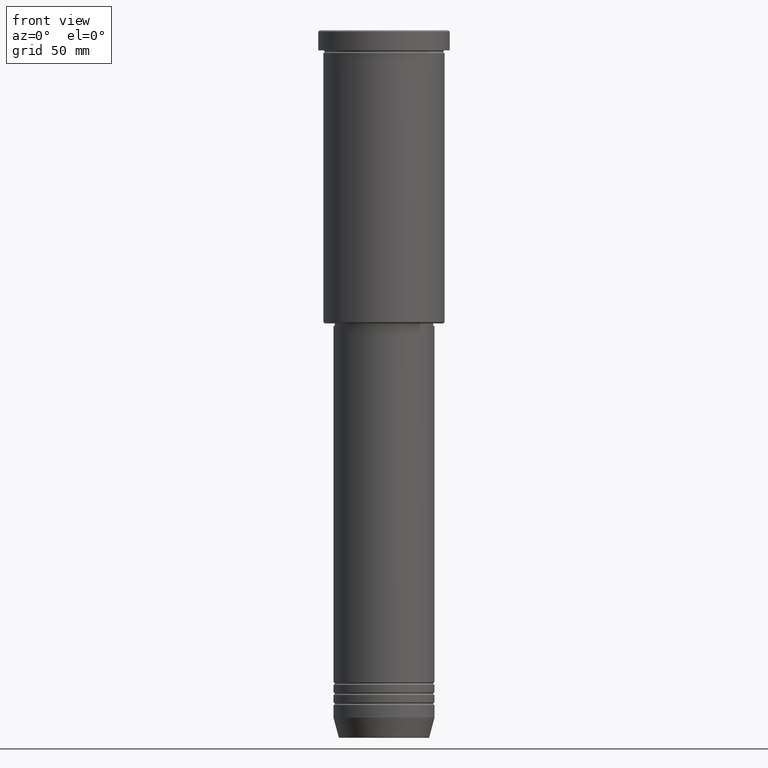
[diagram: clean part render]
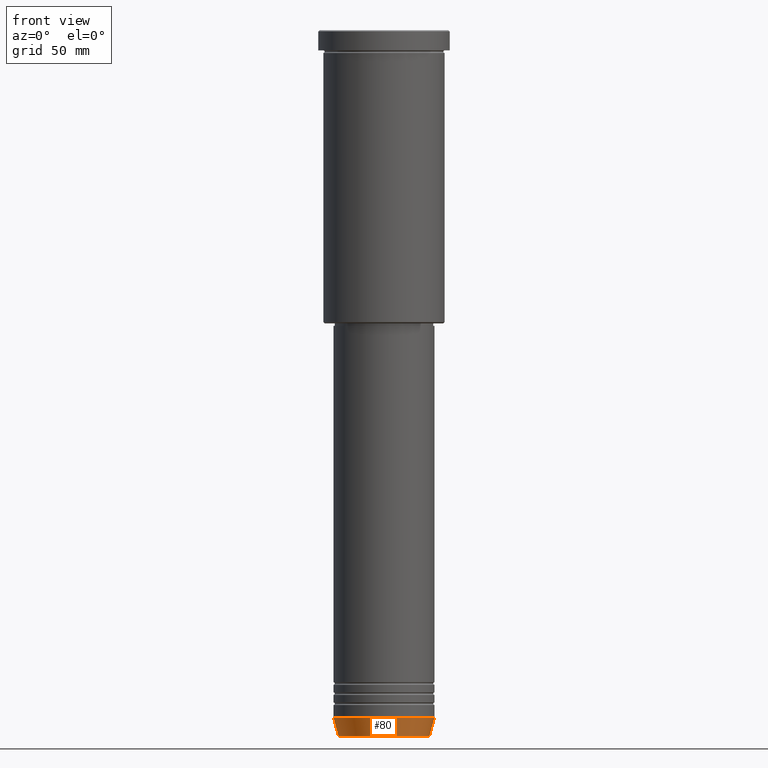
[diagram: same view with one face highlighted and labeled with its STEP entity id]
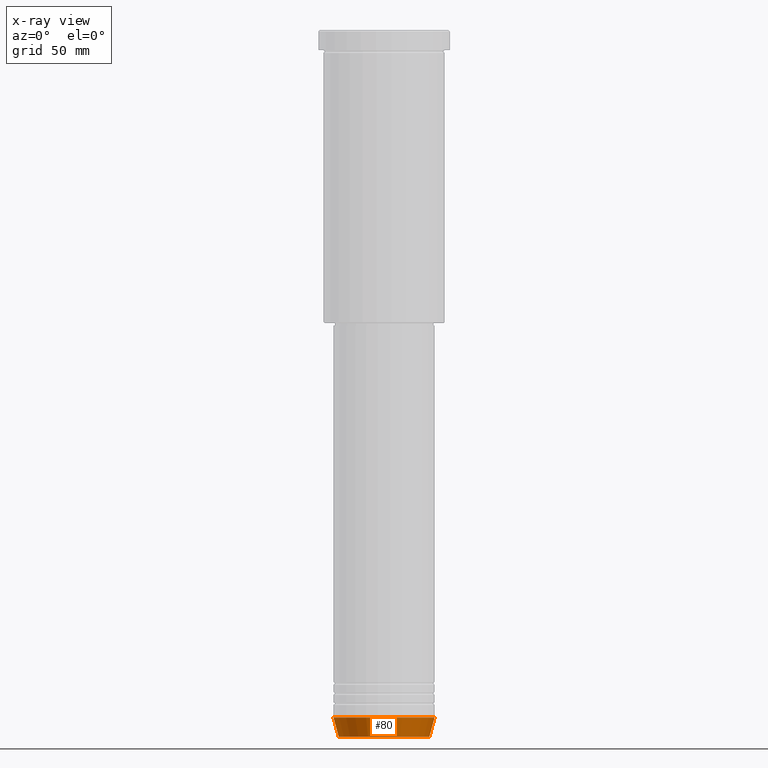
[diagram: x-ray of the same camera — body ghosted, the highlighted face saturated]
A machine part, front view. The second image highlights one B-rep face of the part: STEP entity #80.
The next image is the same camera in x-ray: the body ghosted, the highlighted face saturated — about 0% of this face is hidden behind the body in this view.
In plain terms, the highlighted conical surface has half-angle 15 deg.
Its self-contained STEP definition (entity closure, byte-faithful):
#37 = VECTOR ( 'NONE', #1164, 1000.000000000000114 ) ;
#80 = ADVANCED_FACE ( 'NONE', ( #792 ), #699, .T. ) ;
#84 = CARTESIAN_POINT ( 'NONE',  ( 20.00000000000000355, 0.000000000000000000, -272.0000000000000000 ) ) ;
#165 = CARTESIAN_POINT ( 'NONE',  ( 20.00000000000000355, 0.000000000000000000, -272.0000000000000000 ) ) ;
#210 = VECTOR ( 'NONE', #957, 1000.000000000000114 ) ;
#229 = AXIS2_PLACEMENT_3D ( 'NONE', #785, #599, #322 ) ;
#243 = DIRECTION ( 'NONE',  ( 1.000000000000000000, 0.000000000000000000, 0.000000000000000000 ) ) ;
#322 = DIRECTION ( 'NONE',  ( 1.000000000000000000, 0.000000000000000000, 0.000000000000000000 ) ) ;
#331 = CIRCLE ( 'NONE', #920, 17.95570587970608045 ) ;
#341 = CARTESIAN_POINT ( 'NONE',  ( -20.00000000000000355, 2.449293598294706907E-15, -272.0000000000000000 ) ) ;
#389 = CARTESIAN_POINT ( 'NONE',  ( -20.00000000000000355, 2.449293598294706907E-15, -272.0000000000000000 ) ) ;
#398 = VERTEX_POINT ( 'NONE', #341 ) ;
#407 = ORIENTED_EDGE ( 'NONE', *, *, #607, .T. ) ;
#481 = EDGE_CURVE ( 'NONE', #519, #754, #993, .T. ) ;
#519 = VERTEX_POINT ( 'NONE', #629 ) ;
#544 = DIRECTION ( 'NONE',  ( -0.000000000000000000, -0.000000000000000000, 1.000000000000000000 ) ) ;
#599 = DIRECTION ( 'NONE',  ( -0.000000000000000000, -0.000000000000000000, 1.000000000000000000 ) ) ;
#607 = EDGE_CURVE ( 'NONE', #826, #519, #331, .T. ) ;
#629 = CARTESIAN_POINT ( 'NONE',  ( 17.95570587970608045, 0.000000000000000000, -279.6294095225512706 ) ) ;
#633 = CIRCLE ( 'NONE', #229, 20.00000000000000355 ) ;
#699 = CONICAL_SURFACE ( 'NONE', #1109, 20.00000000000000355, 0.2617993877991499629 ) ;
#737 = CARTESIAN_POINT ( 'NONE',  ( -17.95570587970608045, 2.324116685748021371E-15, -279.6294095225512706 ) ) ;
#754 = VERTEX_POINT ( 'NONE', #84 ) ;
#785 = CARTESIAN_POINT ( 'NONE',  ( 0.000000000000000000, 0.000000000000000000, -272.0000000000000000 ) ) ;
#792 = FACE_OUTER_BOUND ( 'NONE', #871, .T. ) ;
#826 = VERTEX_POINT ( 'NONE', #737 ) ;
#871 = EDGE_LOOP ( 'NONE', ( #1118, #407, #903, #1010 ) ) ;
#903 = ORIENTED_EDGE ( 'NONE', *, *, #481, .T. ) ;
#920 = AXIS2_PLACEMENT_3D ( 'NONE', #1173, #544, #1115 ) ;
#945 = EDGE_CURVE ( 'NONE', #826, #398, #1114, .T. ) ;
#957 = DIRECTION ( 'NONE',  ( -0.2588190451025212391, 3.169619151431771721E-17, 0.9659258262890680902 ) ) ;
#993 = LINE ( 'NONE', #165, #37 ) ;
#1010 = ORIENTED_EDGE ( 'NONE', *, *, #1103, .F. ) ;
#1072 = DIRECTION ( 'NONE',  ( -0.000000000000000000, -0.000000000000000000, 1.000000000000000000 ) ) ;
#1103 = EDGE_CURVE ( 'NONE', #398, #754, #633, .T. ) ;
#1109 = AXIS2_PLACEMENT_3D ( 'NONE', #1159, #1072, #243 ) ;
#1114 = LINE ( 'NONE', #389, #210 ) ;
#1115 = DIRECTION ( 'NONE',  ( 1.000000000000000000, 0.000000000000000000, 0.000000000000000000 ) ) ;
#1118 = ORIENTED_EDGE ( 'NONE', *, *, #945, .F. ) ;
#1159 = CARTESIAN_POINT ( 'NONE',  ( 0.000000000000000000, 0.000000000000000000, -272.0000000000000000 ) ) ;
#1164 = DIRECTION ( 'NONE',  ( 0.2588190451025212391, 0.000000000000000000, 0.9659258262890680902 ) ) ;
#1173 = CARTESIAN_POINT ( 'NONE',  ( 0.000000000000000000, 0.000000000000000000, -279.6294095225512706 ) ) ;